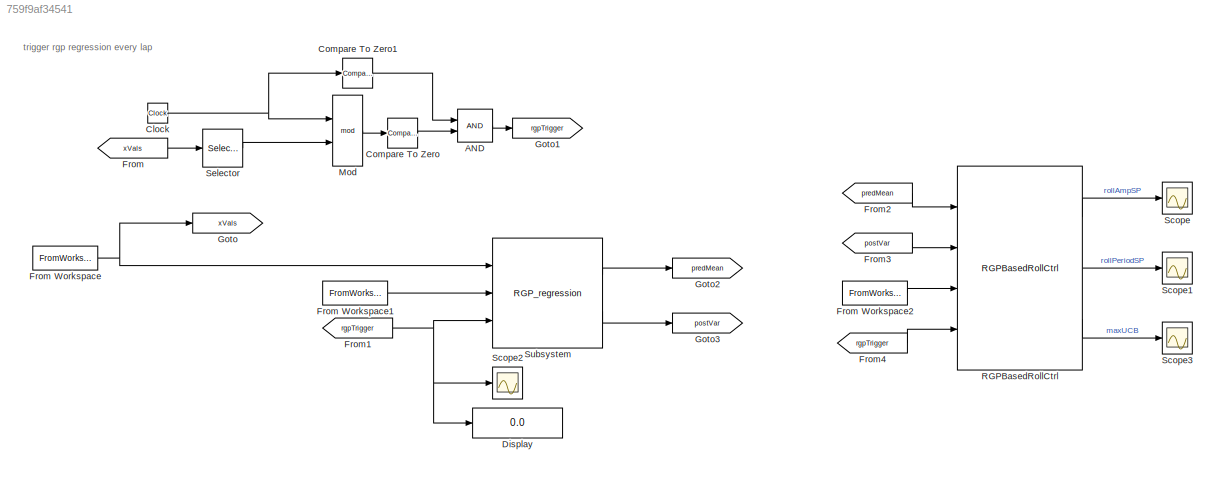
MODEL slx_759f9af34541
KIND model
CONFIG AbsTol = auto
CONFIG EnableMultiTasking = off
CONFIG FixedStep = (timeVec(2)-timeVec(1))
CONFIG MaxStep = auto
CONFIG MinStep = auto
CONFIG RelTol = 1e-3
CONFIG SampleTimeConstraint = Unconstrained
CONFIG Solver = FixedStepAuto
CONFIG SolverName = FixedStepAuto
CONFIG StartTime = 0.0
CONFIG StopTime = timeVec(end)
BLOCK [Logic] AND
  AllPortsSameDT = off
  OutDataTypeStr = boolean
  Ports = [2, 1]
BLOCK [Clock] Clock
BLOCK [Reference] Compare To Zero  REF=simulink/Logic and Bit
Operations/Compare
To Zero
  Ports = [1, 1]
  SourceBlock = simulink/Logic and Bit\nOperations/Compare\nTo Zero
  SourceProductBaseCode = SL
  SourceType = Compare To Zero
BLOCK [Reference] Compare To Zero1  REF=simulink/Logic and Bit
Operations/Compare
To Zero
  Ports = [1, 1]
  SourceBlock = simulink/Logic and Bit\nOperations/Compare\nTo Zero
  SourceProductBaseCode = SL
  SourceType = Compare To Zero
BLOCK [Display] Display
  Decimation = 1
  Ports = [1]
BLOCK [From] From
  GotoTag = xVals
BLOCK [FromWorkspace] From Workspace
  VariableName = xtVals
BLOCK [FromWorkspace] From Workspace1
  VariableName = ytVals
BLOCK [FromWorkspace] From Workspace2
  VariableName = vfVals
BLOCK [From] From1
  GotoTag = rgpTrigger
BLOCK [From] From2
  GotoTag = predMean
BLOCK [From] From3
  GotoTag = postVar
BLOCK [From] From4
  GotoTag = rgpTrigger
BLOCK [Goto] Goto
  GotoTag = xVals
BLOCK [Goto] Goto1
  GotoTag = rgpTrigger
BLOCK [Goto] Goto2
  GotoTag = predMean
BLOCK [Goto] Goto3
  GotoTag = postVar
BLOCK [Math] Mod
  Operator = mod
  Ports = [2, 1]
BLOCK [Reference] RGPBasedRollCtrl  REF=RGP_ctrl/RGPBasedRollCtrl
  Ports = [4, 3]
  SourceBlock = RGP_ctrl/RGPBasedRollCtrl
BLOCK [Scope] Scope
  Floating = off
  NumInputPorts = 1
  Ports = [1]
  ScopeSpecificationString = Simulink.scopes.TimeScopeBlockCfg('CurrentConfiguration', extmgr.ConfigurationSet(extmgr.Configuration('Core','General UI',true),extmgr.Configuration('Core','Source UI',true),extmgr.Configuration('Sources','WiredSimulink',true,'DataLoggingVariableName','ScopeData1'),extmgr.Configuration('Visuals','Time Domain',true),extmgr.Configuration('Tools','Plot Navigation',true),extmgr.Configuration('Tools',...<+40ch>
BLOCK [Scope] Scope1
  Floating = off
  NumInputPorts = 1
  Ports = [1]
  ScopeSpecificationString = Simulink.scopes.TimeScopeBlockCfg('CurrentConfiguration', extmgr.ConfigurationSet(extmgr.Configuration('Core','General UI',true),extmgr.Configuration('Core','Source UI',true),extmgr.Configuration('Sources','WiredSimulink',true,'DataLoggingVariableName','ScopeData2'),extmgr.Configuration('Visuals','Time Domain',true),extmgr.Configuration('Tools','Plot Navigation',true),extmgr.Configuration('Tools',...<+40ch>
BLOCK [Scope] Scope2
  Floating = off
  NumInputPorts = 1
  Ports = [1]
  ScopeSpecificationString = Simulink.scopes.TimeScopeBlockCfg('CurrentConfiguration', extmgr.ConfigurationSet(extmgr.Configuration('Core','General UI',true),extmgr.Configuration('Core','Source UI',true),extmgr.Configuration('Sources','WiredSimulink',true,'DataLoggingVariableName','ScopeData1'),extmgr.Configuration('Visuals','Time Domain',true,'SerializedDisplays',{struct('MinYLimReal','-0.125','MaxYLimReal','1.125','YLabelRe...<+1350ch>
BLOCK [Scope] Scope3
  Floating = off
  NumInputPorts = 1
  Ports = [1]
  ScopeSpecificationString = Simulink.scopes.TimeScopeBlockCfg('CurrentConfiguration', extmgr.ConfigurationSet(extmgr.Configuration('Core','General UI',true),extmgr.Configuration('Core','Source UI',true),extmgr.Configuration('Sources','WiredSimulink',true,'DataLoggingVariableName','ScopeData3'),extmgr.Configuration('Visuals','Time Domain',true),extmgr.Configuration('Tools','Plot Navigation',true),extmgr.Configuration('Tools',...<+40ch>
BLOCK [Selector] Selector
  IndexOptions = Index vector (dialog)
  Indices = 2
  InputPortWidth = 3
  OutputSizes = 1
  Ports = [1, 1]
BLOCK [Reference] Subsystem  REF=RGP_regression/RGP_regression
  Ports = [3, 2]
  SourceBlock = RGP_regression/RGP_regression
ANNOTATION (root): trigger rgp regression every lap
LINE AND:1 -> Goto1:1
NET Clock:1 -> Compare To Zero1:1, Mod:1
LINE Compare To Zero1:1 -> AND:1
LINE Compare To Zero:1 -> AND:2
LINE From Workspace1:1 -> Subsystem:2
LINE From Workspace2:1 -> RGPBasedRollCtrl:3
NET From Workspace:1 -> Goto:1, Subsystem:1
NET From1:1 -> Display:1, Scope2:1, Subsystem:3
LINE From2:1 -> RGPBasedRollCtrl:1
LINE From3:1 -> RGPBasedRollCtrl:2
LINE From4:1 -> RGPBasedRollCtrl:4
LINE From:1 -> Selector:1
LINE Mod:1 -> Compare To Zero:1
LINE RGPBasedRollCtrl:1 -> Scope:1
LINE RGPBasedRollCtrl:2 -> Scope1:1
LINE RGPBasedRollCtrl:3 -> Scope3:1
LINE Selector:1 -> Mod:2
LINE Subsystem:1 -> Goto2:1
LINE Subsystem:2 -> Goto3:1
note: NET lines group one-source signal fan-out (src -> all destinations, sorted); 1:1 wires keep LINE
